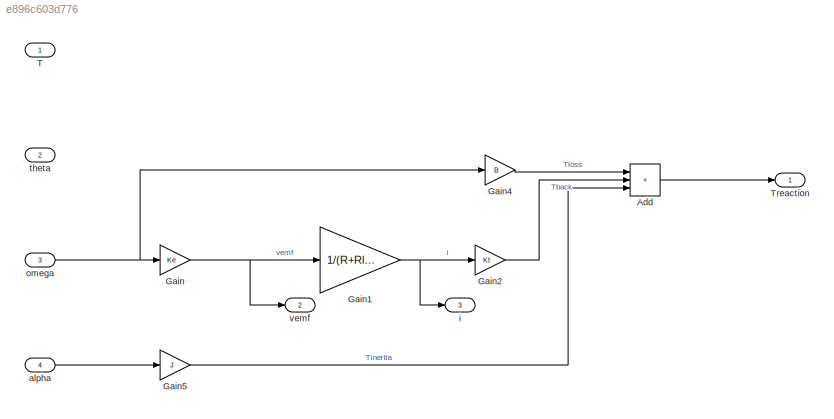
MODEL slx_e896c603d776
KIND model
CONFIG AbsTol = auto
CONFIG EnableMultiTasking = off
CONFIG FixedStep = auto
CONFIG MaxStep = auto
CONFIG MinStep = auto
CONFIG RelTol = 1e-3
CONFIG SampleTimeConstraint = Unconstrained
CONFIG SolverName = VariableStepAuto
CONFIG StartTime = 0.0
CONFIG StopTime = 10.0
WORKSPACE source: mxarray member
WORKSPACE B = 1
WORKSPACE J = 1
WORKSPACE Ke = 1
WORKSPACE Kt = 1
WORKSPACE R = 1
WORKSPACE Rload = 1
BLOCK [Sum] Add
  IconShape = rectangular
  Inputs = +++
BLOCK [Gain] Gain
  Gain = Ke
BLOCK [Gain] Gain1
  Gain = 1/(R+Rload)
BLOCK [Gain] Gain2
  Gain = Kt
BLOCK [Gain] Gain4
  Gain = B
BLOCK [Gain] Gain5
  Gain = J
BLOCK [Inport] T
BLOCK [Outport] Treaction
BLOCK [Inport] alpha
  Port = 4
BLOCK [Outport] i
  Port = 3
BLOCK [Inport] omega
  Port = 3
BLOCK [Inport] theta
  Port = 2
BLOCK [Outport] vemf
  Port = 2
LINE Add:1 -> Treaction:1
NET Gain1:1 -> Gain2:1, i:1
LINE Gain2:1 -> Add:2
LINE Gain4:1 -> Add:1
LINE Gain5:1 -> Add:3
NET Gain:1 -> Gain1:1, vemf:1
LINE alpha:1 -> Gain5:1
NET omega:1 -> Gain4:1, Gain:1
note: NET lines group one-source signal fan-out (src -> all destinations, sorted); 1:1 wires keep LINE
